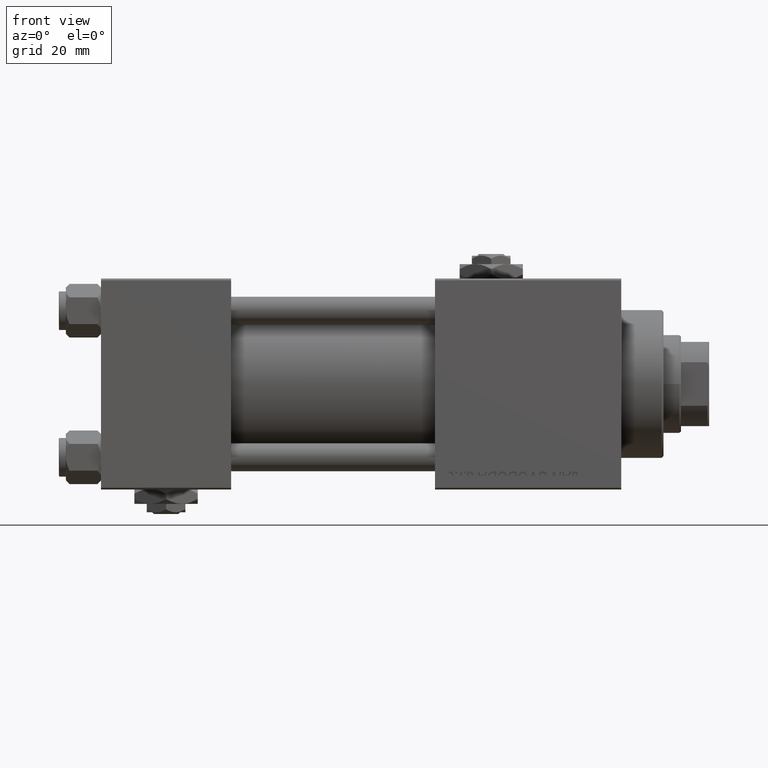
[diagram: clean part render]
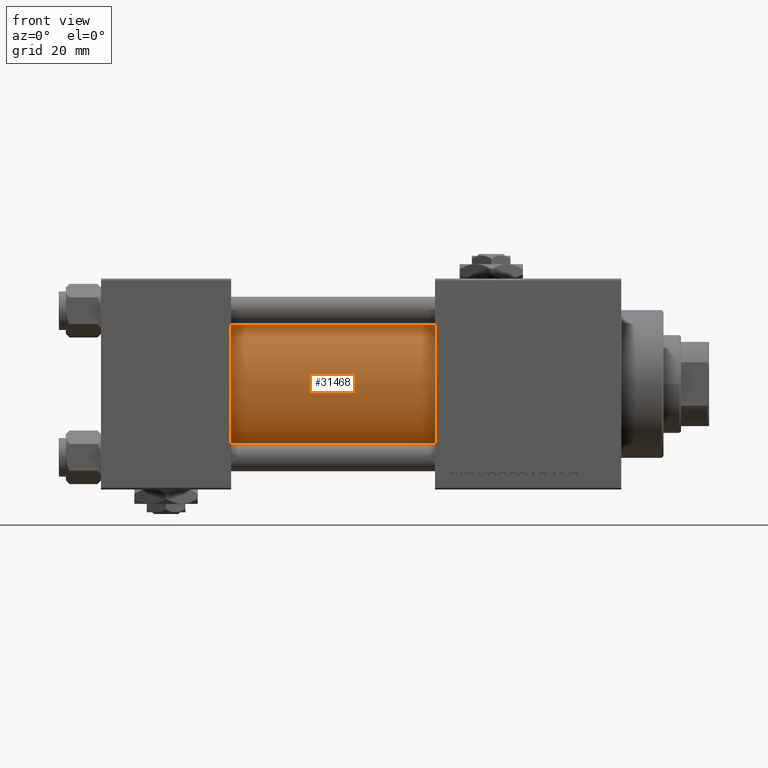
[diagram: same view with one face highlighted and labeled with its STEP entity id]
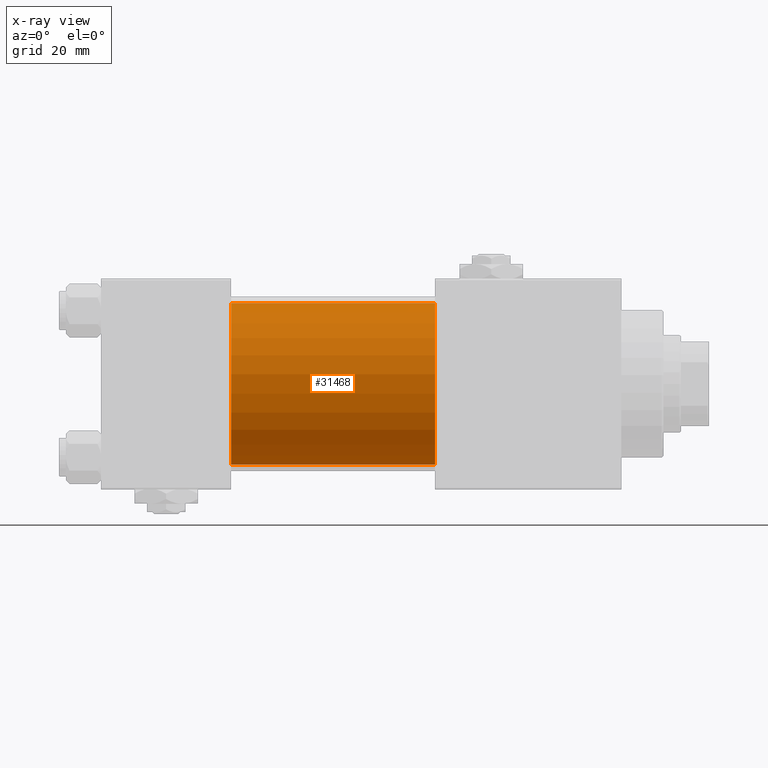
[diagram: x-ray of the same camera — body ghosted, the highlighted face saturated]
A machine part, front view. The second image highlights one B-rep face of the part: STEP entity #31468.
The next image is the same camera in x-ray: the body ghosted, the highlighted face saturated — about 1% of this face is hidden behind the body in this view.
In plain terms, the highlighted cylindrical surface (partial cylindrical patch) has radius 23 mm, axis along (-1, -0, -0).
Its self-contained STEP definition (entity closure, byte-faithful):
#150 = EDGE_CURVE ( 'NONE', #935, #38069, #38652, .T. ) ;
#935 = VERTEX_POINT ( 'NONE', #47414 ) ;
#2818 = VERTEX_POINT ( 'NONE', #17352 ) ;
#4037 = CIRCLE ( 'NONE', #35215, 23.00000000000000000 ) ;
#6283 = DIRECTION ( 'NONE',  ( 0.000000000000000000, 0.000000000000000000, 1.000000000000000000 ) ) ;
#8953 = FACE_OUTER_BOUND ( 'NONE', #41297, .T. ) ;
#10506 = CARTESIAN_POINT ( 'NONE',  ( 95.00000000000000000, -2.602085213965210642E-15, 23.00000000000000000 ) ) ;
#11920 = ORIENTED_EDGE ( 'NONE', *, *, #28095, .F. ) ;
#12432 = DIRECTION ( 'NONE',  ( 1.000000000000000000, -0.000000000000000000, 0.000000000000000000 ) ) ;
#13949 = CYLINDRICAL_SURFACE ( 'NONE', #18464, 23.00000000000000000 ) ;
#14204 = CARTESIAN_POINT ( 'NONE',  ( 95.00000000000000000, -2.602085213965210642E-15, 0.000000000000000000 ) ) ;
#17352 = CARTESIAN_POINT ( 'NONE',  ( 95.00000000000000000, 2.146024240737012665E-16, -23.00000000000000000 ) ) ;
#18239 = CARTESIAN_POINT ( 'NONE',  ( 37.00000000000000000, 2.146024240737012665E-16, -23.00000000000000000 ) ) ;
#18464 = AXIS2_PLACEMENT_3D ( 'NONE', #14204, #45946, #6283 ) ;
#18741 = DIRECTION ( 'NONE',  ( 1.000000000000000000, 0.000000000000000000, 0.000000000000000000 ) ) ;
#19424 = VECTOR ( 'NONE', #35799, 1000.000000000000000 ) ;
#22137 = DIRECTION ( 'NONE',  ( -1.000000000000000000, -0.000000000000000000, -0.000000000000000000 ) ) ;
#22704 = CARTESIAN_POINT ( 'NONE',  ( 95.00000000000000000, -2.602085213965210642E-15, 0.000000000000000000 ) ) ;
#25018 = ORIENTED_EDGE ( 'NONE', *, *, #33200, .T. ) ;
#26077 = AXIS2_PLACEMENT_3D ( 'NONE', #32512, #12432, #44952 ) ;
#27052 = LINE ( 'NONE', #31566, #19424 ) ;
#28095 = EDGE_CURVE ( 'NONE', #47807, #2818, #4037, .T. ) ;
#28600 = VECTOR ( 'NONE', #22137, 1000.000000000000000 ) ;
#30157 = CARTESIAN_POINT ( 'NONE',  ( 95.00000000000000000, -2.602085213965210642E-15, 23.00000000000000000 ) ) ;
#30899 = DIRECTION ( 'NONE',  ( 0.000000000000000000, 0.000000000000000000, -1.000000000000000000 ) ) ;
#31468 = ADVANCED_FACE ( 'NONE', ( #8953 ), #13949, .T. ) ;
#31566 = CARTESIAN_POINT ( 'NONE',  ( 95.00000000000000000, 2.146024240737012665E-16, -23.00000000000000000 ) ) ;
#32019 = ORIENTED_EDGE ( 'NONE', *, *, #39091, .F. ) ;
#32082 = ORIENTED_EDGE ( 'NONE', *, *, #150, .T. ) ;
#32512 = CARTESIAN_POINT ( 'NONE',  ( 37.00000000000000000, -2.602085213965210642E-15, 0.000000000000000000 ) ) ;
#33200 = EDGE_CURVE ( 'NONE', #47807, #935, #50694, .T. ) ;
#35215 = AXIS2_PLACEMENT_3D ( 'NONE', #22704, #18741, #30899 ) ;
#35799 = DIRECTION ( 'NONE',  ( -1.000000000000000000, -0.000000000000000000, -0.000000000000000000 ) ) ;
#38069 = VERTEX_POINT ( 'NONE', #18239 ) ;
#38652 = CIRCLE ( 'NONE', #26077, 23.00000000000000000 ) ;
#39091 = EDGE_CURVE ( 'NONE', #2818, #38069, #27052, .T. ) ;
#41297 = EDGE_LOOP ( 'NONE', ( #32019, #11920, #25018, #32082 ) ) ;
#44952 = DIRECTION ( 'NONE',  ( 0.000000000000000000, 0.000000000000000000, 1.000000000000000000 ) ) ;
#45946 = DIRECTION ( 'NONE',  ( -1.000000000000000000, -0.000000000000000000, -0.000000000000000000 ) ) ;
#47414 = CARTESIAN_POINT ( 'NONE',  ( 37.00000000000000000, -2.602085213965210642E-15, 23.00000000000000000 ) ) ;
#47807 = VERTEX_POINT ( 'NONE', #30157 ) ;
#50694 = LINE ( 'NONE', #10506, #28600 ) ;